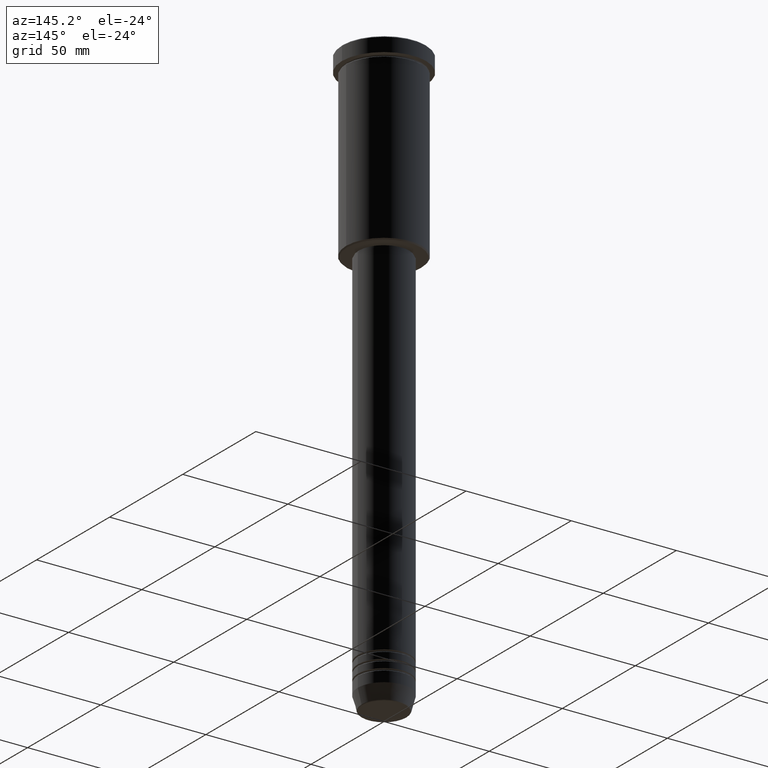
[diagram: clean part render]
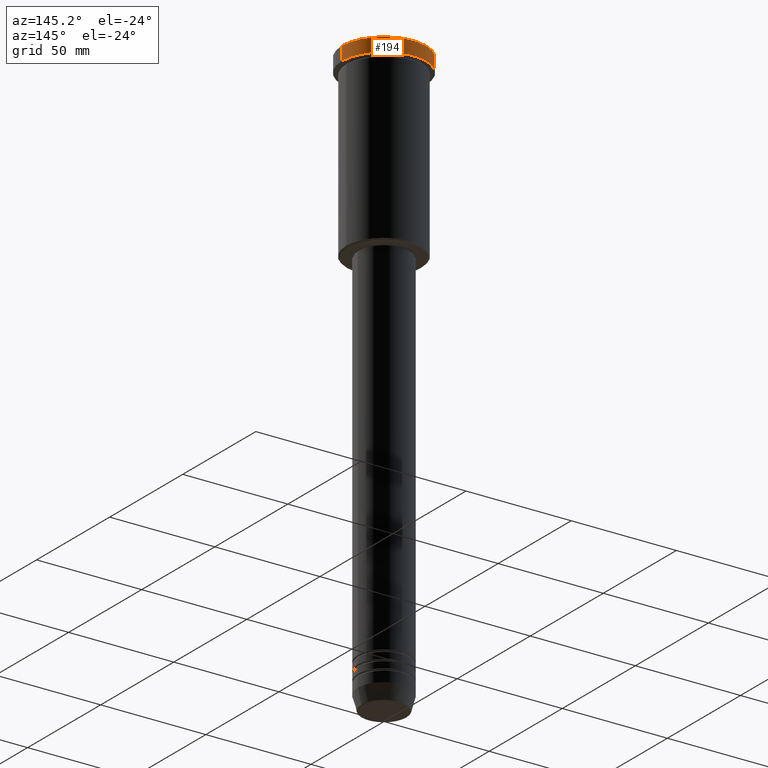
[diagram: same view with one face highlighted and labeled with its STEP entity id]
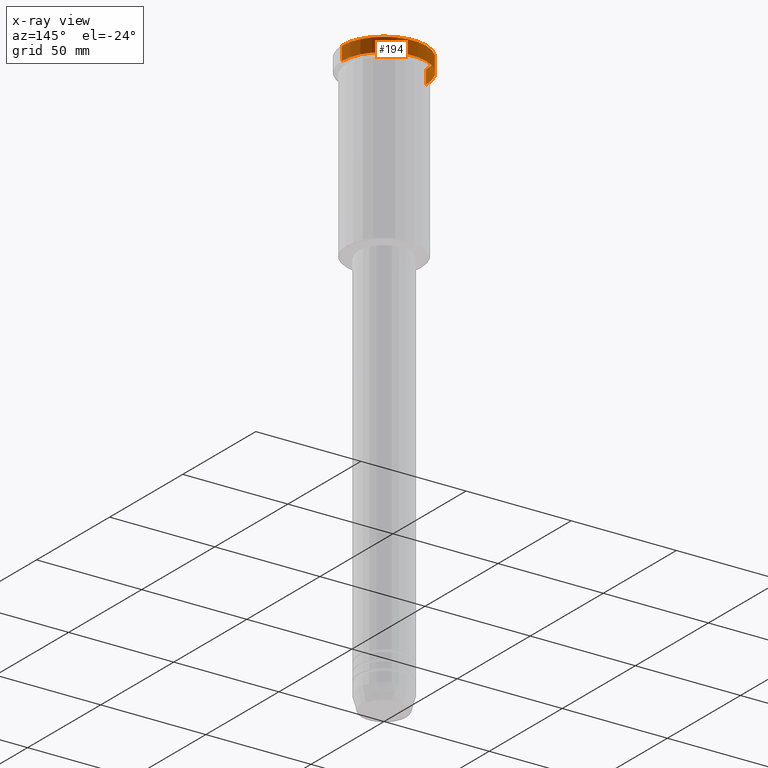
[diagram: x-ray of the same camera — body ghosted, the highlighted face saturated]
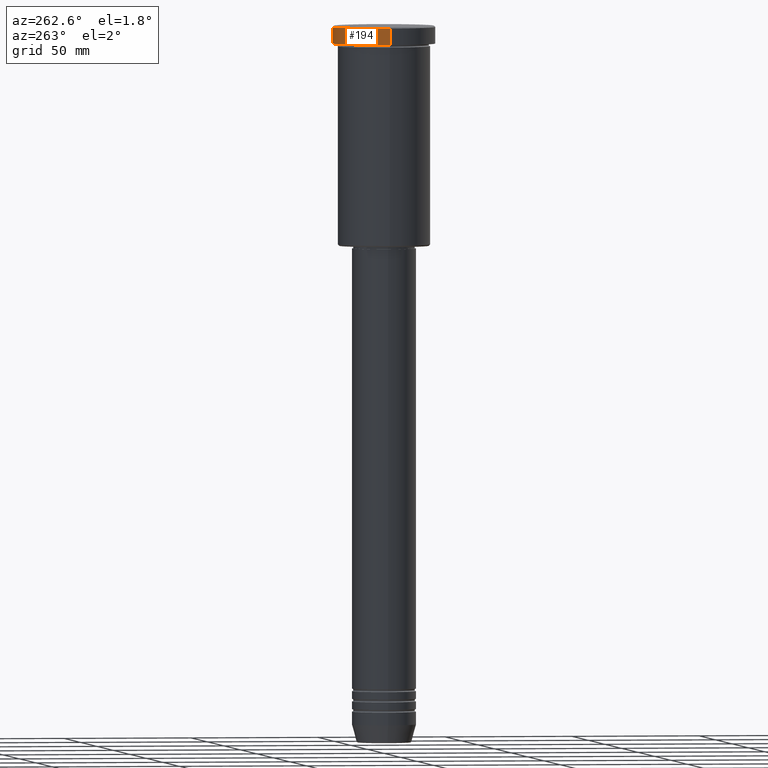
[diagram: same view with one face highlighted and labeled with its STEP entity id]
A machine part, auxiliary view. The second image highlights one B-rep face of the part: STEP entity #194.
The next image is the same camera in x-ray: the body ghosted, the highlighted face saturated — about 0% of this face is hidden behind the body in this view.
A second angle (auxiliary view) of the same face is appended — the face is thin or edge-on in the first view.
In plain terms, the highlighted cylindrical surface (partial cylindrical patch) has radius 20 mm, axis along (-0, -0, 1).
Its self-contained STEP definition (entity closure, byte-faithful):
#88 = CARTESIAN_POINT ( 'NONE',  ( 20.00000000000000000, 0.000000000000000000, -6.999999999999995559 ) ) ;
#113 = DIRECTION ( 'NONE',  ( 1.000000000000000000, 0.000000000000000000, 0.000000000000000000 ) ) ;
#131 = VERTEX_POINT ( 'NONE', #88 ) ;
#144 = VERTEX_POINT ( 'NONE', #815 ) ;
#194 = ADVANCED_FACE ( 'NONE', ( #279 ), #310, .T. ) ;
#209 = EDGE_LOOP ( 'NONE', ( #541, #1000, #486, #563 ) ) ;
#229 = LINE ( 'NONE', #884, #745 ) ;
#279 = FACE_OUTER_BOUND ( 'NONE', #209, .T. ) ;
#298 = CARTESIAN_POINT ( 'NONE',  ( 0.000000000000000000, 0.000000000000000000, -6.999999999999995559 ) ) ;
#304 = AXIS2_PLACEMENT_3D ( 'NONE', #298, #565, #113 ) ;
#310 = CYLINDRICAL_SURFACE ( 'NONE', #515, 20.00000000000000000 ) ;
#337 = EDGE_CURVE ( 'NONE', #131, #1117, #1056, .T. ) ;
#400 = CIRCLE ( 'NONE', #304, 20.00000000000000000 ) ;
#424 = DIRECTION ( 'NONE',  ( -0.000000000000000000, -0.000000000000000000, 1.000000000000000000 ) ) ;
#463 = CARTESIAN_POINT ( 'NONE',  ( -20.00000000000000000, 2.449293598294706513E-15, -6.999999999999995559 ) ) ;
#486 = ORIENTED_EDGE ( 'NONE', *, *, #650, .T. ) ;
#497 = AXIS2_PLACEMENT_3D ( 'NONE', #622, #1080, #1160 ) ;
#515 = AXIS2_PLACEMENT_3D ( 'NONE', #842, #658, #767 ) ;
#541 = ORIENTED_EDGE ( 'NONE', *, *, #717, .T. ) ;
#563 = ORIENTED_EDGE ( 'NONE', *, *, #337, .F. ) ;
#565 = DIRECTION ( 'NONE',  ( -0.000000000000000000, -0.000000000000000000, 1.000000000000000000 ) ) ;
#570 = VECTOR ( 'NONE', #424, 1000.000000000000000 ) ;
#595 = VERTEX_POINT ( 'NONE', #463 ) ;
#622 = CARTESIAN_POINT ( 'NONE',  ( 0.000000000000000000, 0.000000000000000000, -0.4999999999999692468 ) ) ;
#650 = EDGE_CURVE ( 'NONE', #144, #1117, #1012, .T. ) ;
#658 = DIRECTION ( 'NONE',  ( -0.000000000000000000, -0.000000000000000000, 1.000000000000000000 ) ) ;
#696 = CARTESIAN_POINT ( 'NONE',  ( 20.00000000000000000, 0.000000000000000000, 0.000000000000000000 ) ) ;
#717 = EDGE_CURVE ( 'NONE', #131, #595, #400, .T. ) ;
#745 = VECTOR ( 'NONE', #1142, 1000.000000000000000 ) ;
#767 = DIRECTION ( 'NONE',  ( 1.000000000000000000, 0.000000000000000000, 0.000000000000000000 ) ) ;
#815 = CARTESIAN_POINT ( 'NONE',  ( -20.00000000000000000, 2.449293598294706513E-15, -0.4999999999999692468 ) ) ;
#842 = CARTESIAN_POINT ( 'NONE',  ( 0.000000000000000000, 0.000000000000000000, 0.000000000000000000 ) ) ;
#879 = EDGE_CURVE ( 'NONE', #595, #144, #229, .T. ) ;
#884 = CARTESIAN_POINT ( 'NONE',  ( -20.00000000000000000, 2.449293598294706513E-15, 0.000000000000000000 ) ) ;
#999 = CARTESIAN_POINT ( 'NONE',  ( 20.00000000000000000, 0.000000000000000000, -0.4999999999999692468 ) ) ;
#1000 = ORIENTED_EDGE ( 'NONE', *, *, #879, .T. ) ;
#1012 = CIRCLE ( 'NONE', #497, 20.00000000000000000 ) ;
#1056 = LINE ( 'NONE', #696, #570 ) ;
#1080 = DIRECTION ( 'NONE',  ( 0.000000000000000000, 0.000000000000000000, -1.000000000000000000 ) ) ;
#1117 = VERTEX_POINT ( 'NONE', #999 ) ;
#1142 = DIRECTION ( 'NONE',  ( -0.000000000000000000, -0.000000000000000000, 1.000000000000000000 ) ) ;
#1160 = DIRECTION ( 'NONE',  ( 1.000000000000000000, 0.000000000000000000, 0.000000000000000000 ) ) ;